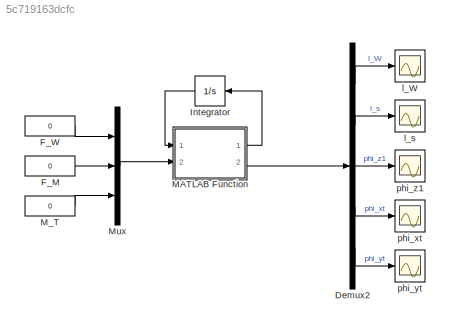
MODEL slx_5c719163dcfc
KIND model
CONFIG AbsTol = auto
CONFIG EnableMultiTasking = on
CONFIG FixedStep = 0.01
CONFIG MaxStep = 0.05
CONFIG MinStep = auto
CONFIG RelTol = 1e-3
CONFIG SampleTimeConstraint = Unconstrained
CONFIG Solver = ode4
CONFIG SolverName = ode4
CONFIG StartTime = 0.0
CONFIG StopTime = 10
BLOCK [Demux] Demux2
  Outputs = 5
  Ports = [1, 5]
BLOCK [Constant] F_M
  Value = 0
BLOCK [Constant] F_W
  Value = 0
BLOCK [Integrator] Integrator
  InitialCondition = x0_tdk
  Ports = [1, 1]
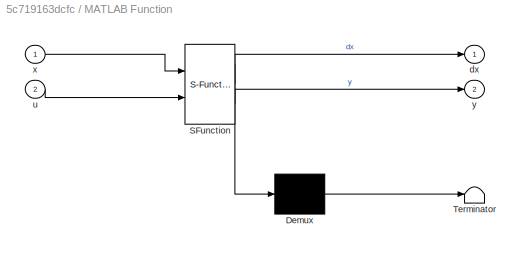
BLOCK [SubSystem] MATLAB Function
  ErrorFcn = Stateflow.Translate.translate
  PermitHierarchicalResolution = ExplicitOnly
  Ports = [2, 2]
  SFBlockType = MATLAB Function
  TreatAsAtomicUnit = on
BLOCK [Demux] MATLAB Function/ Demux 
  Outputs = 1
  Ports = [1, 1]
BLOCK [S-Function] MATLAB Function/ SFunction 
  EnableBusSupport = off
  FunctionName = sf_sfun
  Parameters = par_tdk
  PortCounts = [2 3]
  Ports = [2, 3]
  SFcnIsStateOwnerBlock = off
  SFunctionDeploymentMode = off
  Tag = Stateflow S-Function tdk_sim_r2017b 2
BLOCK [Terminator] MATLAB Function/ Terminator 
BLOCK [Outport] MATLAB Function/dx
  VectorParamsAs1DForOutWhenUnconnected = off
BLOCK [Inport] MATLAB Function/u
  Port = 2
BLOCK [Inport] MATLAB Function/x
BLOCK [Outport] MATLAB Function/y
  Port = 2
  VectorParamsAs1DForOutWhenUnconnected = off
BLOCK [Constant] M_T
  Value = 0
BLOCK [Mux] Mux
  DisplayOption = bar
  Inputs = 3
  Ports = [3, 1]
BLOCK [Scope] l_W
  Floating = off
  NumInputPorts = 1
  Ports = [1]
  ScopeSpecificationString = Simulink.scopes.TimeScopeBlockCfg('CurrentConfiguration', extmgr.ConfigurationSet(extmgr.Configuration('Core','General UI',true),extmgr.Configuration('Core','Source UI',true),extmgr.Configuration('Sources','WiredSimulink',true,'DataLoggingSaveFormat','StructureWithTime','DataLoggingLimitDataPoints',true,'DataLoggingDecimation','1','DataLoggingDecimateData',true),extmgr.Configuration('Visuals','Tim...<+1708ch>
BLOCK [Scope] l_s
  Floating = off
  NumInputPorts = 1
  Ports = [1]
  ScopeSpecificationString = Simulink.scopes.TimeScopeBlockCfg('CurrentConfiguration', extmgr.ConfigurationSet(extmgr.Configuration('Core','General UI',true),extmgr.Configuration('Core','Source UI',true),extmgr.Configuration('Sources','WiredSimulink',true,'DataLoggingVariableName','ScopeData1','DataLoggingSaveFormat','StructureWithTime','DataLoggingLimitDataPoints',true,'DataLoggingDecimation','1','DataLoggingDecimateData',tr...<+1763ch>
BLOCK [Scope] phi_xt
  Floating = off
  NumInputPorts = 1
  Ports = [1]
  ScopeSpecificationString = Simulink.scopes.TimeScopeBlockCfg('CurrentConfiguration', extmgr.ConfigurationSet(extmgr.Configuration('Core','General UI',true),extmgr.Configuration('Core','Source UI',true),extmgr.Configuration('Sources','WiredSimulink',true,'DataLoggingVariableName','ScopeData3','DataLoggingSaveFormat','StructureWithTime','DataLoggingLimitDataPoints',true,'DataLoggingDecimation','1','DataLoggingDecimateData',tr...<+1766ch>
BLOCK [Scope] phi_yt
  Floating = off
  NumInputPorts = 1
  Ports = [1]
  ScopeSpecificationString = Simulink.scopes.TimeScopeBlockCfg('CurrentConfiguration', extmgr.ConfigurationSet(extmgr.Configuration('Core','General UI',true),extmgr.Configuration('Core','Source UI',true),extmgr.Configuration('Sources','WiredSimulink',true,'DataLoggingVariableName','ScopeData4','DataLoggingSaveFormat','StructureWithTime','DataLoggingLimitDataPoints',true,'DataLoggingDecimation','1','DataLoggingDecimateData',tr...<+1755ch>
BLOCK [Scope] phi_z1
  Floating = off
  NumInputPorts = 1
  Ports = [1]
  ScopeSpecificationString = Simulink.scopes.TimeScopeBlockCfg('CurrentConfiguration', extmgr.ConfigurationSet(extmgr.Configuration('Core','General UI',true),extmgr.Configuration('Core','Source UI',true),extmgr.Configuration('Sources','WiredSimulink',true,'DataLoggingVariableName','ScopeData2','DataLoggingSaveFormat','StructureWithTime','DataLoggingLimitDataPoints',true,'DataLoggingDecimation','1','DataLoggingDecimateData',tr...<+1752ch>
LINE Demux2:1 -> l_W:1
LINE Demux2:2 -> l_s:1
LINE Demux2:3 -> phi_z1:1
LINE Demux2:4 -> phi_xt:1
LINE Demux2:5 -> phi_yt:1
LINE F_M:1 -> Mux:2
LINE F_W:1 -> Mux:1
LINE Integrator:1 -> MATLAB Function:1
LINE MATLAB Function:1 -> Integrator:1
LINE MATLAB Function:2 -> Demux2:1
LINE M_T:1 -> Mux:3
LINE Mux:1 -> MATLAB Function:2
CHART MATLAB Function states=1 transitions=1
  STATE_LABEL 'eML_blk_kernel()'
  STATE_LABEL 'SCRIPT:\nfunction [dx, y] = tdk_fcn(x, u, par_tdk)\n%\n% inputs:   u1(1)... F_W   Force of the cart [N]\n%           u2(1)... F_M   Force of the rope winch [N]\n%           u3(1)... M_T   Torque of the tower [Nm]\n%\n% states:   x(1)... l_W          Position of the cart [m]\n%           x(2)... l_s          Rope length [m]\n%           x(3)... phi_zi       Angle of the tower [rad]\n%           x(4)... phi_x...<+3608ch>'
